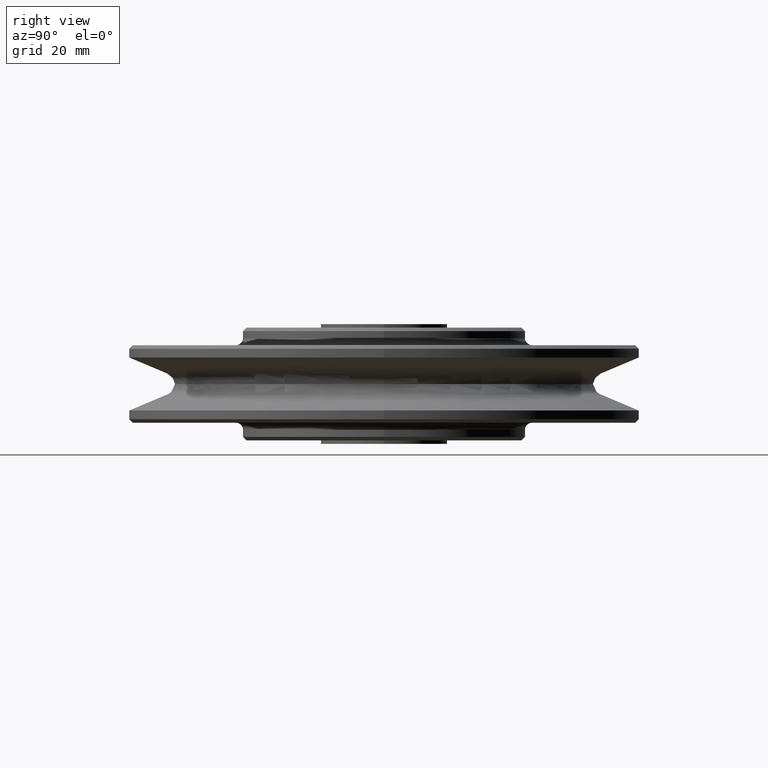
[diagram: clean part render]
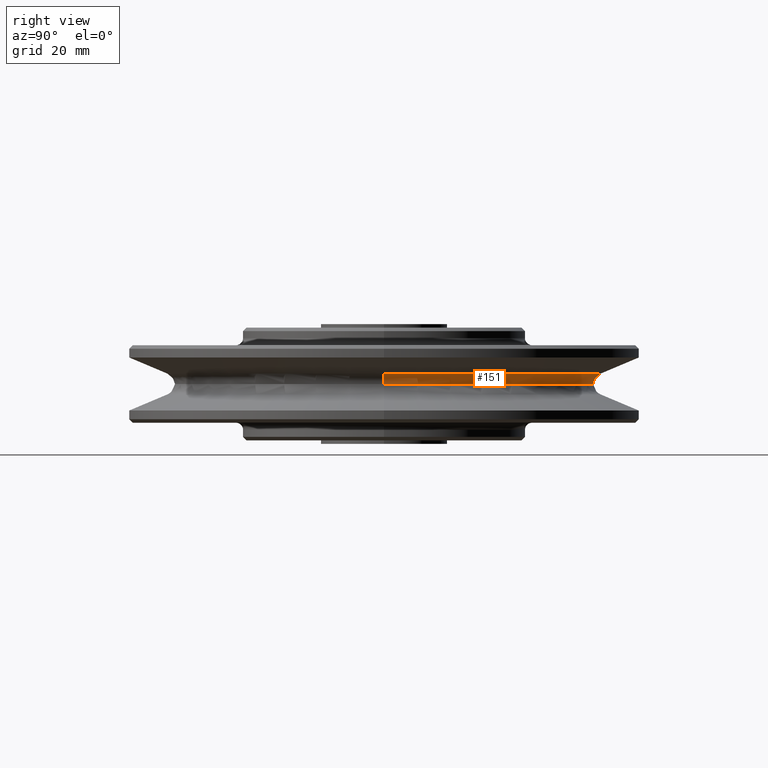
[diagram: same view with one face highlighted and labeled with its STEP entity id]
A machine part, right view. The second image highlights one B-rep face of the part: STEP entity #151.
In plain terms, the highlighted toroidal blend (fillet) surface has major radius 62.7 mm and minor (blend) radius 3.2 mm.
Its self-contained STEP definition (entity closure, byte-faithful):
#151=ADVANCED_FACE('',(#421),#422,.F.);
#421=FACE_OUTER_BOUND('',#831,.T.);
#422=TOROIDAL_SURFACE('',#832,62.6999999917,3.1999999917);
#831=EDGE_LOOP('',(#1235,#1236,#1237,#1238));
#832=AXIS2_PLACEMENT_3D('',#1239,#1240,#1241);
#1235=ORIENTED_EDGE('',*,*,#2564,.F.);
#1236=ORIENTED_EDGE('',*,*,#2565,.T.);
#1237=ORIENTED_EDGE('',*,*,#2566,.F.);
#1238=ORIENTED_EDGE('',*,*,#2567,.T.);
#1239=CARTESIAN_POINT('',(0.0,0.0,0.0));
#1240=DIRECTION('',(0.0,0.0,1.0));
#1241=DIRECTION('',(1.0,0.0,0.0));
#2564=EDGE_CURVE('',#3103,#3104,#3105,.T.);
#2565=EDGE_CURVE('',#3103,#3106,#3107,.T.);
#2566=EDGE_CURVE('',#3108,#3106,#3109,.T.);
#2567=EDGE_CURVE('',#3108,#3104,#3110,.T.);
#3103=VERTEX_POINT('',#3920);
#3104=VERTEX_POINT('',#3921);
#3105=CIRCLE('',#3922,59.5);
#3106=VERTEX_POINT('',#3923);
#3107=CIRCLE('',#3924,3.1999999917);
#3108=VERTEX_POINT('',#3925);
#3109=CIRCLE('',#3926,61.47541302);
#3110=CIRCLE('',#3927,3.1999999917);
#3920=CARTESIAN_POINT('',(-59.5,7.00009441890853E-015,3.91886974710696E-016));
#3921=CARTESIAN_POINT('',(59.5,-7.00009441890853E-015,3.91886974710696E-016));
#3922=AXIS2_PLACEMENT_3D('',#7838,#7839,#7840);
#3923=CARTESIAN_POINT('',(-61.47541302,7.52856677812045E-015,2.9564145));
#3924=AXIS2_PLACEMENT_3D('',#7841,#7842,#7843);
#3925=CARTESIAN_POINT('',(61.47541302,0.0,2.9564145));
#3926=AXIS2_PLACEMENT_3D('',#7844,#7845,#7846);
#3927=AXIS2_PLACEMENT_3D('',#7847,#7848,#7849);
#7838=CARTESIAN_POINT('',(0.0,0.0,3.91886974710696E-016));
#7839=DIRECTION('',(-0.0,0.0,-1.0));
#7840=DIRECTION('',(-1.0,0.0,0.0));
#7841=CARTESIAN_POINT('',(-62.6999999917,7.67853542963745E-015,0.0));
#7842=DIRECTION('',(-1.22464679914735E-016,-1.0,0.0));
#7843=DIRECTION('',(-1.0,1.22464679914735E-016,-0.0));
#7844=CARTESIAN_POINT('',(0.0,0.0,2.9564145));
#7845=DIRECTION('',(0.0,0.0,1.0));
#7846=DIRECTION('',(1.0,0.0,0.0));
#7847=CARTESIAN_POINT('',(62.6999999917,-7.67853542963745E-015,0.0));
#7848=DIRECTION('',(-1.22464679914735E-016,-1.0,0.0));
#7849=DIRECTION('',(1.0,-1.22464679914735E-016,0.0));